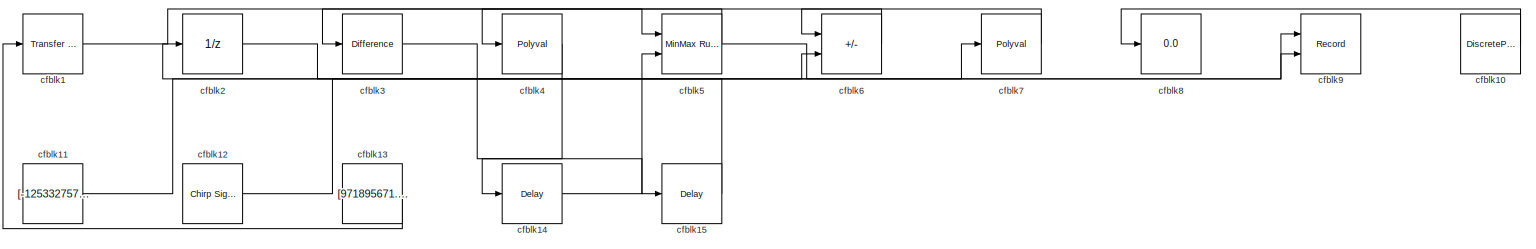
[diagram: root canvas - part 1/1, most of the canvas]
MODEL slx_c0fda37e3c56
KIND model
CONFIG AbsTol = auto
CONFIG EnableMultiTasking = off
CONFIG FixedStep = auto
CONFIG MaxStep = auto
CONFIG MinStep = auto
CONFIG RelTol = 1e-3
CONFIG SampleTimeConstraint = Unconstrained
CONFIG SolverName = VariableStepAuto
CONFIG StartTime = 0.0
CONFIG StopTime = 10.0
BLOCK [Reference] cfblk1  REF=simulink/Discrete/Transfer Fcn
Real Zero
  Ports = [1, 1]
  SourceBlock = simulink/Discrete/Transfer Fcn\nReal Zero
  SourceProductBaseCode = SL
  SourceType = Transfer Fcn Real Zero
BLOCK [DiscretePulseGenerator] cfblk10
  Amplitude = [684580611.940352]
  Period = [90863037.478560]
  PhaseDelay = [5.000000]
  Ports = [0, 1]
  PulseType = Time based
  PulseWidth = 5
BLOCK [Constant] cfblk11
  SampleTime = 1
  Value = [-125332757.501043]
BLOCK [Reference] cfblk12  REF=simulink/Sources/Chirp Signal
  Ports = [0, 1]
  SourceBlock = simulink/Sources/Chirp Signal
  SourceProductBaseCode = SL
  SourceType = chirp
BLOCK [Constant] cfblk13
  SampleTime = 1
  Value = [971895671.919541]
BLOCK [Delay] cfblk14
  InputPortMap = u0
  Ports = [1, 1]
  SampleTime = 1
BLOCK [Delay] cfblk15
  InputPortMap = u0
  Ports = [1, 1]
  SampleTime = 1
BLOCK [UnitDelay] cfblk2
  HasFrameUpgradeWarning = on
BLOCK [Reference] cfblk3  REF=simulink/Discrete/Difference
  Ports = [1, 1]
  SourceBlock = simulink/Discrete/Difference
  SourceProductBaseCode = SL
  SourceType = Difference
BLOCK [Polyval] cfblk4
  Coefs = [ +2.081618890e-019, -1.441693666e-014, +4.719686976e-010, -8.536869453e-006, +1.621573104e-001, -8.087801117e+001 ]
BLOCK [Reference] cfblk5  REF=simulink/Math
Operations/MinMax
Running
Resettable
  Ports = [2, 1]
  SourceBlock = simulink/Math\nOperations/MinMax\nRunning\nResettable
  SourceProductBaseCode = SL
  SourceType = MinMax Running Resettable
BLOCK [Sum] cfblk6
  IconShape = rectangular
  Inputs = +-
  Ports = [2, 1]
BLOCK [Polyval] cfblk7
  Coefs = [ +2.081618890e-019, -1.441693666e-014, +4.719686976e-010, -8.536869453e-006, +1.621573104e-001, -8.087801117e+001 ]
BLOCK [Display] cfblk8
  Decimation = 1
  Ports = [1]
BLOCK [Record] cfblk9
  CompatibilityTag = XY
  FileSettingsInternal = {"entries":[{"content":{"excelSettings":{"content":{},"type":"Streamout.ExcelSettings"}},"type":"Streamout.FileSettingStorage","uuid":"9b7841ad-6a22-4a8e-a1cf-05eca4c7cefb"}],"packageUris":["http://schema.mathworks.com/mf0/streamout_blocks/R2020a"],"version":"1.0"}
  Layout = [1 1]
  Ports = [2]
  SignalsInternal = {"entries":[{"content":{"signals":[{"content":{"blockPath":["sampleModel299/cfblk9"],"channel":[],"dimensions":[1],"domain":"sampleModel299/cfblk9","lineColor":"#a2142f","plots":[1],"port":1,"sid":[""],"signalID":12898,"signalName":"cfblk11"},"type":"RecordBlkView.Signal","uuid":"0ef4b418-99a9-4e30-9209-0d92b90a0cbb"},{"content":{"blockPath":["sampleModel299/cfblk9"],"channel":[],"dimensions":[1],...<+380ch>
  VisualizationBindings = {"xyplotplugin":{"info":[{"series":[{"bindingParametersList":[{"parameter":"X-Axis","signalID":12898,"signalName":"cfblk11"},{"parameter":"Y-Axis","signalID":12902,"signalName":"cfblk5"}],"seriesID":53874}],"subplotID":1}]}}
LINE cfblk10:1 -> cfblk8:1
LINE cfblk11:1 -> cfblk9:1
LINE cfblk12:1 -> cfblk7:1
LINE cfblk13:1 -> cfblk1:1
LINE cfblk14:1 -> cfblk5:2
LINE cfblk15:1 -> cfblk2:1
LINE cfblk1:1 -> cfblk5:1
LINE cfblk2:1 -> cfblk6:2
LINE cfblk3:1 -> cfblk15:1
LINE cfblk4:1 -> cfblk14:1
NET cfblk5:1 -> cfblk4:1, cfblk9:2
LINE cfblk6:1 -> cfblk3:1
LINE cfblk7:1 -> cfblk6:1
note: NET lines group one-source signal fan-out (src -> all destinations, sorted); 1:1 wires keep LINE
